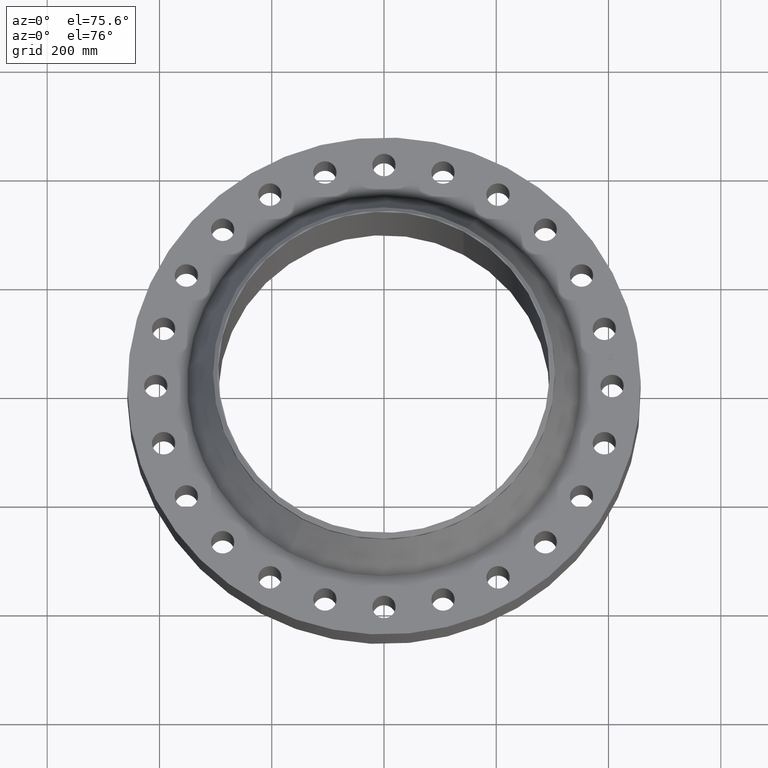
[diagram: clean part render]
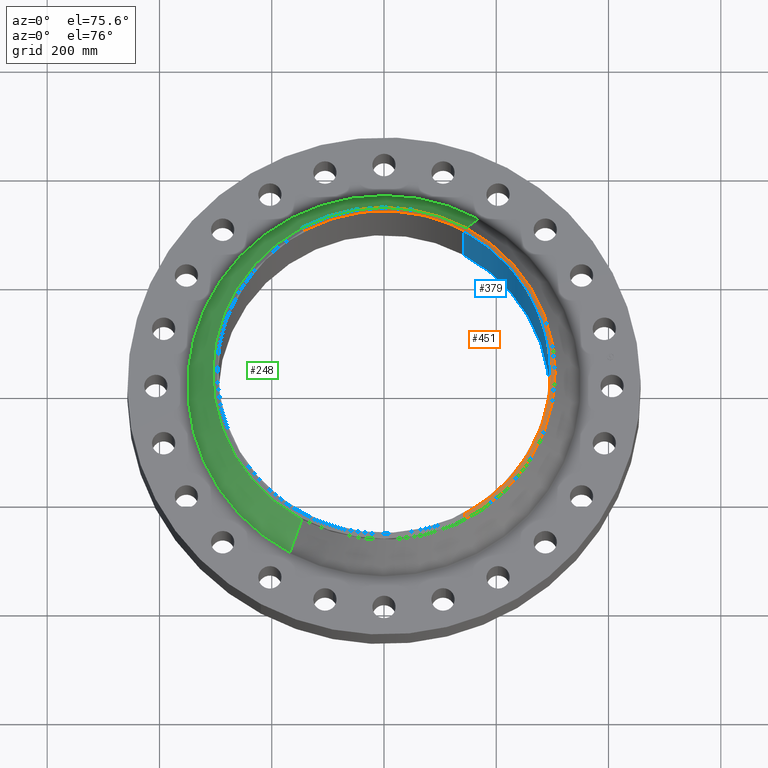
[diagram: same view with three faces highlighted in distinct colors, each labeled with its STEP entity id]
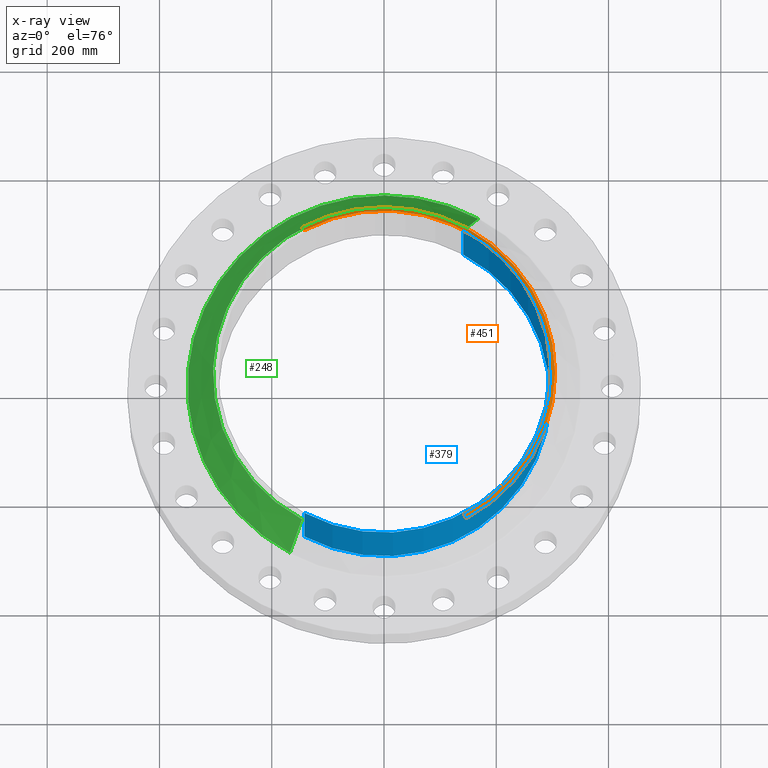
[diagram: x-ray of the same camera — body ghosted, the three highlighted faces saturated]
A machine part, auxiliary view with three faces highlighted in distinct colors.
The next image is the same camera in x-ray (body ghosted, the three faces saturated) — at least one of them is partly hidden behind the body in this view.
Their STEP definitions:

[orange] entity #451 — the highlighted conical surface has half-angle 52.5 deg.
#270=AXIS2_PLACEMENT_3D('Circle Axis2P3D',#268,#269,$) ;
#297=AXIS2_PLACEMENT_3D('Circle Axis2P3D',#295,#296,$) ;
#311=AXIS2_PLACEMENT_3D('Cone Axis2P3D',#308,#309,#310) ;
#432=AXIS2_PLACEMENT_3D('Circle Axis2P3D',#430,#431,$) ;
#265=CARTESIAN_POINT('Vertex',(5.75310646327,10.5309907427,6.33267182741)) ;
#268=CARTESIAN_POINT('Axis2P3D Location',(0.,0.,6.33267182741)) ;
#272=CARTESIAN_POINT('Vertex',(5.75310646327,-10.5309907427,6.33267182741)) ;
#292=CARTESIAN_POINT('Vertex',(-5.75310646327,10.5309907427,6.33267182741)) ;
#295=CARTESIAN_POINT('Axis2P3D Location',(0.,0.,6.33267182741)) ;
#308=CARTESIAN_POINT('Axis2P3D Location',(0.,0.,6.56000000003)) ;
#313=CARTESIAN_POINT('Line Origine',(5.68208919599,-10.4009945069,6.44633591372)) ;
#317=CARTESIAN_POINT('Vertex',(5.61107192871,-10.2709982711,6.56000000003)) ;
#324=CARTESIAN_POINT('Vertex',(-5.61107192871,10.2709982711,6.56000000003)) ;
#327=CARTESIAN_POINT('Line Origine',(-5.68208919599,10.4009945069,6.44633591372)) ;
#430=CARTESIAN_POINT('Axis2P3D Location',(0.,0.,6.56000000003)) ;
#269=DIRECTION('Axis2P3D Direction',(0.,0.,-0.0393700787402)) ;
#296=DIRECTION('Axis2P3D Direction',(0.,0.,-0.0393700787402)) ;
#309=DIRECTION('Axis2P3D Direction',(-0.,-0.,-0.0393700787402)) ;
#310=DIRECTION('Axis2P3D XDirection',(-0.0188750212049,0.0345504945626,0.)) ;
#314=DIRECTION('Vector Direction',(0.014974561121,-0.02741075027,-0.023966985394)) ;
#328=DIRECTION('Vector Direction',(-0.014974561121,0.02741075027,-0.023966985394)) ;
#431=DIRECTION('Axis2P3D Direction',(0.,0.,-0.0393700787402)) ;
#315=VECTOR('Line Direction',#314,0.0393700787402) ;
#329=VECTOR('Line Direction',#328,0.0393700787402) ;
#445=ORIENTED_EDGE('',*,*,#331,.F.) ;
#446=ORIENTED_EDGE('',*,*,#434,.F.) ;
#447=ORIENTED_EDGE('',*,*,#319,.T.) ;
#448=ORIENTED_EDGE('',*,*,#274,.T.) ;
#449=ORIENTED_EDGE('',*,*,#299,.F.) ;
#451=ADVANCED_FACE('PartBody',(#450),#312,.T.) ;
#271=CIRCLE('generated circle',#270,12.) ;
#298=CIRCLE('generated circle',#297,12.) ;
#433=CIRCLE('generated circle',#432,11.7037401575) ;
#312=CONICAL_SURFACE('Cone',#311,11.7037401575,0.916297857297) ;
#274=EDGE_CURVE('',#273,#266,#271,.F.) ;
#299=EDGE_CURVE('',#293,#266,#298,.T.) ;
#319=EDGE_CURVE('',#318,#273,#316,.T.) ;
#331=EDGE_CURVE('',#325,#293,#330,.T.) ;
#434=EDGE_CURVE('',#318,#325,#433,.F.) ;
#444=EDGE_LOOP('',(#445,#446,#447,#448,#449)) ;
#450=FACE_OUTER_BOUND('',#444,.T.) ;
#316=LINE('Line',#313,#315) ;
#330=LINE('Line',#327,#329) ;
#266=VERTEX_POINT('',#265) ;
#273=VERTEX_POINT('',#272) ;
#293=VERTEX_POINT('',#292) ;
#318=VERTEX_POINT('',#317) ;
#325=VERTEX_POINT('',#324) ;

[blue] entity #379 — the highlighted cylindrical surface (partial cylindrical patch) has radius 295.275 mm, axis along (0, 0, -1).
#343=AXIS2_PLACEMENT_3D('Cylinder Axis2P3D',#340,#341,#342) ;
#347=AXIS2_PLACEMENT_3D('Circle Axis2P3D',#345,#346,$) ;
#363=AXIS2_PLACEMENT_3D('Circle Axis2P3D',#361,#362,$) ;
#340=CARTESIAN_POINT('Axis2P3D Location',(0.,0.,3.24875000001)) ;
#345=CARTESIAN_POINT('Axis2P3D Location',(0.,0.,6.56000000003)) ;
#349=CARTESIAN_POINT('Vertex',(5.5733218863,10.201897282,6.56000000003)) ;
#351=CARTESIAN_POINT('Vertex',(-5.5733218863,-10.201897282,6.56000000003)) ;
#354=CARTESIAN_POINT('Line Origine',(5.5733218863,10.201897282,3.24875000001)) ;
#358=CARTESIAN_POINT('Vertex',(5.5733218863,10.201897282,-0.0625000000004)) ;
#361=CARTESIAN_POINT('Axis2P3D Location',(0.,0.,-0.0625000000004)) ;
#365=CARTESIAN_POINT('Vertex',(-5.5733218863,-10.201897282,-0.0625000000004)) ;
#368=CARTESIAN_POINT('Line Origine',(-5.5733218863,-10.201897282,3.24875000001)) ;
#341=DIRECTION('Axis2P3D Direction',(0.,0.,-0.0393700787402)) ;
#342=DIRECTION('Axis2P3D XDirection',(-0.0188750212049,-0.0345504945626,0.)) ;
#346=DIRECTION('Axis2P3D Direction',(0.,0.,-0.0393700787402)) ;
#355=DIRECTION('Vector Direction',(0.,0.,-0.0393700787402)) ;
#362=DIRECTION('Axis2P3D Direction',(0.,0.,-0.0393700787402)) ;
#369=DIRECTION('Vector Direction',(0.,0.,-0.0393700787402)) ;
#356=VECTOR('Line Direction',#355,0.0393700787402) ;
#370=VECTOR('Line Direction',#369,0.0393700787402) ;
#374=ORIENTED_EDGE('',*,*,#353,.F.) ;
#375=ORIENTED_EDGE('',*,*,#360,.T.) ;
#376=ORIENTED_EDGE('',*,*,#367,.T.) ;
#377=ORIENTED_EDGE('',*,*,#372,.F.) ;
#379=ADVANCED_FACE('PartBody',(#378),#344,.F.) ;
#348=CIRCLE('generated circle',#347,11.625) ;
#364=CIRCLE('generated circle',#363,11.625) ;
#344=CYLINDRICAL_SURFACE('generated cylinder',#343,11.625) ;
#353=EDGE_CURVE('',#350,#352,#348,.T.) ;
#360=EDGE_CURVE('',#350,#359,#357,.T.) ;
#367=EDGE_CURVE('',#359,#366,#364,.T.) ;
#372=EDGE_CURVE('',#352,#366,#371,.T.) ;
#373=EDGE_LOOP('',(#374,#375,#376,#377)) ;
#378=FACE_OUTER_BOUND('',#373,.T.) ;
#357=LINE('Line',#354,#356) ;
#371=LINE('Line',#368,#370) ;
#350=VERTEX_POINT('',#349) ;
#352=VERTEX_POINT('',#351) ;
#359=VERTEX_POINT('',#358) ;
#366=VERTEX_POINT('',#365) ;

[green] entity #248 — the highlighted conical surface has half-angle 27.984 deg.
#196=AXIS2_PLACEMENT_3D('Circle Axis2P3D',#194,#195,$) ;
#209=AXIS2_PLACEMENT_3D('Cone Axis2P3D',#206,#207,#208) ;
#239=AXIS2_PLACEMENT_3D('Circle Axis2P3D',#237,#238,$) ;
#167=CARTESIAN_POINT('Vertex',(6.6046413798,12.089714952,2.75369354348)) ;
#174=CARTESIAN_POINT('Vertex',(-6.6046413798,-12.089714952,2.75369354348)) ;
#194=CARTESIAN_POINT('Axis2P3D Location',(0.,0.,2.75369354348)) ;
#206=CARTESIAN_POINT('Axis2P3D Location',(0.,0.,6.09645135496)) ;
#211=CARTESIAN_POINT('Line Origine',(6.17887392154,11.3103528474,4.42507244922)) ;
#215=CARTESIAN_POINT('Vertex',(5.75310646327,10.5309907427,6.09645135496)) ;
#222=CARTESIAN_POINT('Vertex',(-5.75310646327,-10.5309907427,6.09645135496)) ;
#225=CARTESIAN_POINT('Line Origine',(-6.17887392154,-11.3103528474,4.42507244922)) ;
#237=CARTESIAN_POINT('Axis2P3D Location',(0.,0.,6.09645135496)) ;
#195=DIRECTION('Axis2P3D Direction',(0.,0.,-0.0393700787402)) ;
#207=DIRECTION('Axis2P3D Direction',(0.,0.,-0.0393700787402)) ;
#208=DIRECTION('Axis2P3D XDirection',(-0.0188750212049,-0.0345504945626,0.)) ;
#212=DIRECTION('Vector Direction',(0.00885654634092,0.0162117993338,-0.0347669706658)) ;
#226=DIRECTION('Vector Direction',(-0.00885654634092,-0.0162117993338,-0.0347669706658)) ;
#238=DIRECTION('Axis2P3D Direction',(0.,0.,-0.0393700787402)) ;
#213=VECTOR('Line Direction',#212,0.0393700787402) ;
#227=VECTOR('Line Direction',#226,0.0393700787402) ;
#243=ORIENTED_EDGE('',*,*,#198,.F.) ;
#244=ORIENTED_EDGE('',*,*,#229,.T.) ;
#245=ORIENTED_EDGE('',*,*,#241,.T.) ;
#246=ORIENTED_EDGE('',*,*,#217,.F.) ;
#248=ADVANCED_FACE('PartBody',(#247),#210,.T.) ;
#197=CIRCLE('generated circle',#196,13.7761567709) ;
#240=CIRCLE('generated circle',#239,12.) ;
#210=CONICAL_SURFACE('Cone',#209,12.,0.488407833077) ;
#198=EDGE_CURVE('',#175,#168,#197,.T.) ;
#217=EDGE_CURVE('',#168,#216,#214,.F.) ;
#229=EDGE_CURVE('',#175,#223,#228,.F.) ;
#241=EDGE_CURVE('',#223,#216,#240,.T.) ;
#242=EDGE_LOOP('',(#243,#244,#245,#246)) ;
#247=FACE_OUTER_BOUND('',#242,.T.) ;
#214=LINE('Line',#211,#213) ;
#228=LINE('Line',#225,#227) ;
#168=VERTEX_POINT('',#167) ;
#175=VERTEX_POINT('',#174) ;
#216=VERTEX_POINT('',#215) ;
#223=VERTEX_POINT('',#222) ;